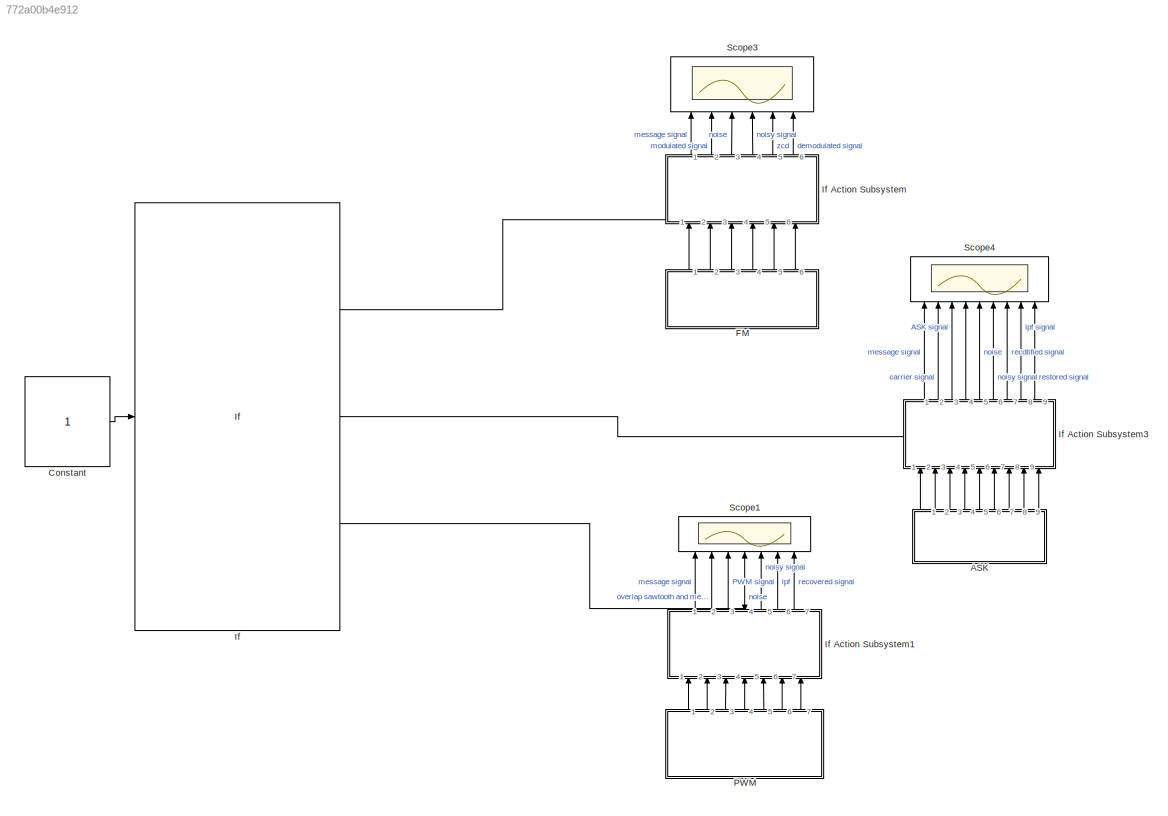
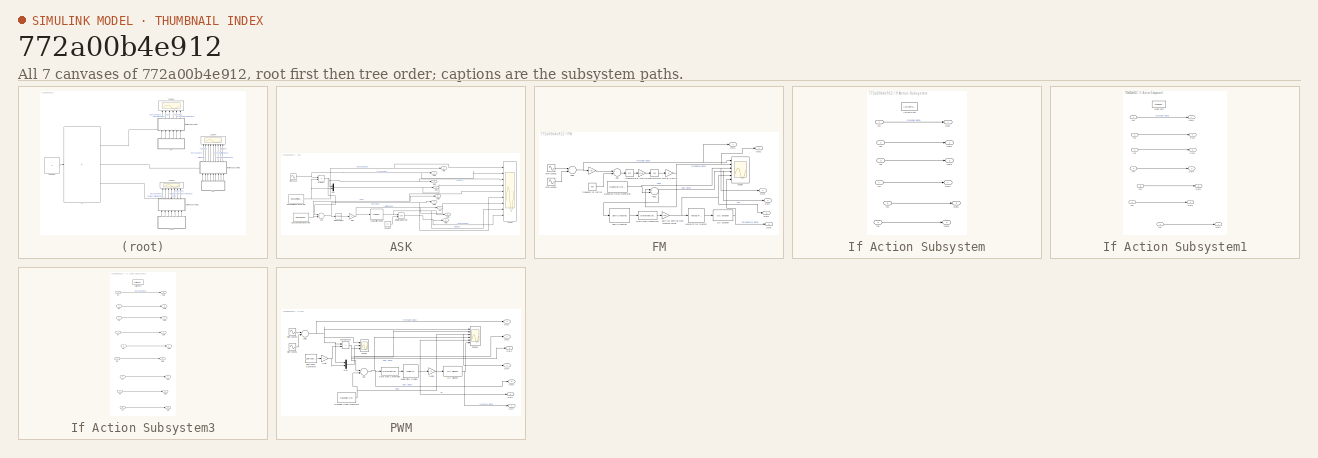
[diagram: thumbnail index - all 7 canvases of the model, root first then tree order]
MODEL slx_772a00b4e912
KIND model
BLOCK [SubSystem] ASK
  Ports = [0, 9]
  RequestExecContextInheritance = off
BLOCK [Sum] ASK/Add
  InputSameDT = off
  OutDataTypeStr = Inherit: Inherit via internal rule
  Ports = [2, 1]
  SampleTime = .0001
  SaturateOnIntegerOverflow = off
BLOCK [Reference] ASK/Analog Filter Design  REF=dsparch4/Analog
Filter Design
  N = 8
  Ports = [1, 1]
  Rp = 2
  Rs = 40
  SourceBlock = dsparch4/Analog\nFilter Design
  SourceType = Analog Filter Design
  Whi = 80
  Wlo = 2*pi*50
  filttype = Lowpass
  method = Butterworth
BLOCK [Constant] ASK/Constant
  SampleTime = 0.0001
  Value = 0.1
BLOCK [Gain] ASK/Gain
  Gain = 2
  OutDataTypeStr = Inherit: Inherit via internal rule
  ParamDataTypeStr = Inherit: Inherit via internal rule
  SampleTime = 0.0001
  SaturateOnIntegerOverflow = off
BLOCK [Reference] ASK/Gaussian Noise Generator  REF=commnoisgen2/Gaussian Noise
Generator
  Ports = [0, 1]
  SourceBlock = commnoisgen2/Gaussian Noise\nGenerator
  SourceType = Gaussian Noise Generator
  Ts = 0.0001
  d = 1e-12
  frameBased = off
  m = 0
  orient = off
  outDataType = double
  s = 41
  sampPerFrame = 1
BLOCK [Math] ASK/Math Function1
  Operator = square
  Ports = [1, 1]
  SampleTime = .0001
BLOCK [Mux] ASK/Mux
  DisplayOption = bar
  Inputs = 2
  Ports = [2, 1]
BLOCK [Outport] ASK/Out1
  IconDisplay = Port number
BLOCK [Outport] ASK/Out2
  IconDisplay = Port number
  Port = 2
BLOCK [Outport] ASK/Out3
  IconDisplay = Port number
  Port = 3
BLOCK [Outport] ASK/Out4
  IconDisplay = Port number
  Port = 4
BLOCK [Outport] ASK/Out5
  IconDisplay = Port number
  Port = 5
BLOCK [Outport] ASK/Out6
  IconDisplay = Port number
  Port = 6
BLOCK [Outport] ASK/Out7
  IconDisplay = Port number
  Port = 7
BLOCK [Outport] ASK/Out8
  IconDisplay = Port number
  Port = 8
BLOCK [Outport] ASK/Out9
  IconDisplay = Port number
  Port = 9
BLOCK [Product] ASK/Product
  InputSameDT = off
  OutDataTypeStr = Inherit: Inherit via internal rule
  Ports = [2, 1]
  RndMeth = Floor
  SampleTime = 0.0001
  SaturateOnIntegerOverflow = off
BLOCK [Reference] ASK/Random Integer Generator  REF=commrandsrc2/Random Integer
Generator
  Ports = [0, 1]
  SourceBlock = commrandsrc2/Random Integer\nGenerator
  SourceType = Random Integer Generator
  Ts = .1
  frameBased = off
  mul = 2
  orient = off
  outDataType = double
  sampPerFrame = 1
  seed = 37
BLOCK [RelationalOperator] ASK/Relational Operator
  InputSameDT = off
  OutDataTypeStr = boolean
  Ports = [2, 1]
  SampleTime = 0.0001
BLOCK [Scope] ASK/Scope
  Floating = off
  LimitDataPoints = off
  NumInputPorts = 9
  Ports = [9]
  SaveName = ScopeData3
  ShowLegends = off
  YMax = 5~5~5~5~5~5~5~5~5
  YMin = -5~-5~-5~-5~-5~-5~-5~-5~-5
BLOCK [Sin] ASK/Sine Wave
  Frequency = 2*pi*50
  Ports = [0, 1]
  SampleTime = 0.0001
BLOCK [Constant] Constant
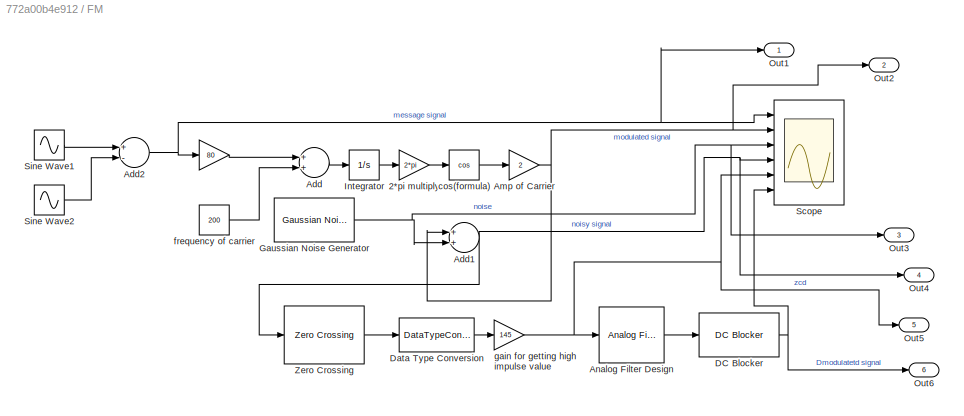
BLOCK [SubSystem] FM
  Ports = [0, 6]
  RequestExecContextInheritance = off
BLOCK [Gain] FM/ 
  Gain = 80
  OutDataTypeStr = Inherit: Inherit via internal rule
  ParamDataTypeStr = Inherit: Inherit via internal rule
  SampleTime = .0001
  SaturateOnIntegerOverflow = off
BLOCK [Gain] FM/2*pi multiply
  Gain = 2*pi
  OutDataTypeStr = Inherit: Inherit via internal rule
  ParamDataTypeStr = Inherit: Inherit via internal rule
  SampleTime = .0001
  SaturateOnIntegerOverflow = off
BLOCK [Sum] FM/Add
  InputSameDT = off
  OutDataTypeStr = Inherit: Inherit via internal rule
  Ports = [2, 1]
  SampleTime = .0001
  SaturateOnIntegerOverflow = off
BLOCK [Sum] FM/Add1
  InputSameDT = off
  OutDataTypeStr = Inherit: Inherit via internal rule
  Ports = [2, 1]
  SampleTime = .0001
  SaturateOnIntegerOverflow = off
BLOCK [Sum] FM/Add2
  InputSameDT = off
  Inputs = +-
  OutDataTypeStr = Inherit: Inherit via internal rule
  Ports = [2, 1]
  SampleTime = .0001
  SaturateOnIntegerOverflow = off
BLOCK [Gain] FM/Amp of Carrier
  Gain = 2
  OutDataTypeStr = Inherit: Inherit via internal rule
  ParamDataTypeStr = Inherit: Inherit via internal rule
  SampleTime = .0001
  SaturateOnIntegerOverflow = off
BLOCK [Reference] FM/Analog Filter Design  REF=dsparch4/Analog
Filter Design
  N = 8
  Ports = [1, 1]
  Rp = 2
  Rs = 40
  SourceBlock = dsparch4/Analog\nFilter Design
  SourceType = Analog Filter Design
  Whi = 80
  Wlo = 2*pi*20
  filttype = Lowpass
  method = Butterworth
BLOCK [Reference] FM/DC Blocker  REF=dspsigops/DC Blocker
  Algorithm = IIR
  Length = 8
  NormalizedBandwidth = 0.001
  Order = 6
  Ports = [1, 1]
  SimulateUsing = Code generation
  SourceBlock = dspsigops/DC Blocker
  SourceType = DCBlocker
BLOCK [DataTypeConversion] FM/Data Type Conversion
  RndMeth = Floor
  SampleTime = .0001
  SaturateOnIntegerOverflow = off
BLOCK [Reference] FM/Gaussian Noise Generator  REF=commnoisgen2/Gaussian Noise
Generator
  Ports = [0, 1]
  SourceBlock = commnoisgen2/Gaussian Noise\nGenerator
  SourceType = Gaussian Noise Generator
  Ts = .0001
  d = 0.000001
  frameBased = off
  m = 0
  orient = off
  outDataType = double
  s = 41
  sampPerFrame = 1
BLOCK [Integrator] FM/Integrator
  Ports = [1, 1]
BLOCK [Outport] FM/Out1
  IconDisplay = Port number
BLOCK [Outport] FM/Out2
  IconDisplay = Port number
  Port = 2
BLOCK [Outport] FM/Out3
  IconDisplay = Port number
  Port = 3
BLOCK [Outport] FM/Out4
  IconDisplay = Port number
  Port = 4
BLOCK [Outport] FM/Out5
  IconDisplay = Port number
  Port = 5
BLOCK [Outport] FM/Out6
  IconDisplay = Port number
  Port = 6
BLOCK [Scope] FM/Scope
  Floating = off
  LimitDataPoints = off
  NumInputPorts = 6
  Ports = [6]
  SaveName = ScopeData5
  ShowLegends = off
  YMax = 5~5~5~5~5~5
  YMin = -5~-5~-5~-5~-5~-5
  ZoomMode = yonly
BLOCK [Sin] FM/Sine Wave1
  Amplitude = 4
  Frequency = 10*pi
  Ports = [0, 1]
  SampleTime = .0001
BLOCK [Sin] FM/Sine Wave2
  Frequency = 40*pi
  Ports = [0, 1]
  SampleTime = .0001
BLOCK [Reference] FM/Zero Crossing  REF=dspsigops/Zero Crossing
  InputProcessing = Columns as channels (frame based)
  Ports = [1, 1]
  SourceBlock = dspsigops/Zero Crossing
  SourceType = Zero Crossing
  UserDataPersistent = on
BLOCK [Trigonometry] FM/cos(formula)
  Operator = cos
  Ports = [1, 1]
  SampleTime = .0001
BLOCK [Constant] FM/frequency of carrier 
  SampleTime = .0001
  Value = 200
BLOCK [Gain] FM/gain for getting high impulse value
  Gain = 145
  OutDataTypeStr = Inherit: Inherit via internal rule
  ParamDataTypeStr = Inherit: Inherit via internal rule
  SampleTime = .0001
  SaturateOnIntegerOverflow = off
BLOCK [If] If
  ElseIfExpressions = u1 == 1
  IfExpression = u1 == 0
  Ports = [1, 3]
BLOCK [SubSystem] If Action Subsystem
  Ports = [6, 6, 0, 0, 0, 0, 0, 1]
  RequestExecContextInheritance = off
  TreatAsAtomicUnit = on
BLOCK [ActionPort] If Action Subsystem/Action Port
  ActionType = then
BLOCK [Inport] If Action Subsystem/In1
  IconDisplay = Port number
BLOCK [Inport] If Action Subsystem/In2
  IconDisplay = Port number
  Port = 2
BLOCK [Inport] If Action Subsystem/In3
  IconDisplay = Port number
  Port = 3
BLOCK [Inport] If Action Subsystem/In4
  IconDisplay = Port number
  Port = 4
BLOCK [Inport] If Action Subsystem/In5
  IconDisplay = Port number
  Port = 5
BLOCK [Inport] If Action Subsystem/In6
  IconDisplay = Port number
  Port = 6
BLOCK [Outport] If Action Subsystem/Out1
  IconDisplay = Port number
BLOCK [Outport] If Action Subsystem/Out2
  IconDisplay = Port number
  Port = 2
BLOCK [Outport] If Action Subsystem/Out3
  IconDisplay = Port number
  Port = 3
BLOCK [Outport] If Action Subsystem/Out4
  IconDisplay = Port number
  Port = 4
BLOCK [Outport] If Action Subsystem/Out5
  IconDisplay = Port number
  Port = 5
BLOCK [Outport] If Action Subsystem/Out6
  IconDisplay = Port number
  Port = 6
BLOCK [SubSystem] If Action Subsystem1
  Ports = [7, 7, 0, 0, 0, 0, 0, 1]
  RequestExecContextInheritance = off
  TreatAsAtomicUnit = on
BLOCK [ActionPort] If Action Subsystem1/Action Port
  ActionType = else
BLOCK [Inport] If Action Subsystem1/In1
  IconDisplay = Port number
BLOCK [Inport] If Action Subsystem1/In2
  IconDisplay = Port number
  Port = 2
BLOCK [Inport] If Action Subsystem1/In3
  IconDisplay = Port number
  Port = 3
BLOCK [Inport] If Action Subsystem1/In4
  IconDisplay = Port number
  Port = 4
BLOCK [Inport] If Action Subsystem1/In5
  IconDisplay = Port number
  Port = 5
BLOCK [Inport] If Action Subsystem1/In6
  IconDisplay = Port number
  Port = 6
BLOCK [Inport] If Action Subsystem1/In7
  IconDisplay = Port number
  Port = 7
BLOCK [Outport] If Action Subsystem1/Out1
  IconDisplay = Port number
BLOCK [Outport] If Action Subsystem1/Out2
  IconDisplay = Port number
  Port = 2
BLOCK [Outport] If Action Subsystem1/Out3
  IconDisplay = Port number
  Port = 3
BLOCK [Outport] If Action Subsystem1/Out4
  IconDisplay = Port number
  Port = 4
BLOCK [Outport] If Action Subsystem1/Out5
  IconDisplay = Port number
  Port = 5
BLOCK [Outport] If Action Subsystem1/Out6
  IconDisplay = Port number
  Port = 6
BLOCK [Outport] If Action Subsystem1/Out7
  IconDisplay = Port number
  Port = 7
BLOCK [SubSystem] If Action Subsystem3
  Ports = [9, 9, 0, 0, 0, 0, 0, 1]
  RequestExecContextInheritance = off
  TreatAsAtomicUnit = on
BLOCK [ActionPort] If Action Subsystem3/Action Port
  ActionType = elseif
BLOCK [Inport] If Action Subsystem3/In1
  IconDisplay = Port number
BLOCK [Inport] If Action Subsystem3/In2
  IconDisplay = Port number
  Port = 2
BLOCK [Inport] If Action Subsystem3/In3
  IconDisplay = Port number
  Port = 3
BLOCK [Inport] If Action Subsystem3/In4
  IconDisplay = Port number
  Port = 4
BLOCK [Inport] If Action Subsystem3/In5
  IconDisplay = Port number
  Port = 5
BLOCK [Inport] If Action Subsystem3/In6
  IconDisplay = Port number
  Port = 6
BLOCK [Inport] If Action Subsystem3/In7
  IconDisplay = Port number
  Port = 7
BLOCK [Inport] If Action Subsystem3/In8
  IconDisplay = Port number
  Port = 8
BLOCK [Inport] If Action Subsystem3/In9
  IconDisplay = Port number
  Port = 9
BLOCK [Outport] If Action Subsystem3/Out1
  IconDisplay = Port number
BLOCK [Outport] If Action Subsystem3/Out2
  IconDisplay = Port number
  Port = 2
BLOCK [Outport] If Action Subsystem3/Out3
  IconDisplay = Port number
  Port = 3
BLOCK [Outport] If Action Subsystem3/Out4
  IconDisplay = Port number
  Port = 4
BLOCK [Outport] If Action Subsystem3/Out5
  IconDisplay = Port number
  Port = 5
BLOCK [Outport] If Action Subsystem3/Out6
  IconDisplay = Port number
  Port = 6
BLOCK [Outport] If Action Subsystem3/Out7
  IconDisplay = Port number
  Port = 7
BLOCK [Outport] If Action Subsystem3/Out8
  IconDisplay = Port number
  Port = 8
BLOCK [Outport] If Action Subsystem3/Out9
  IconDisplay = Port number
  Port = 9
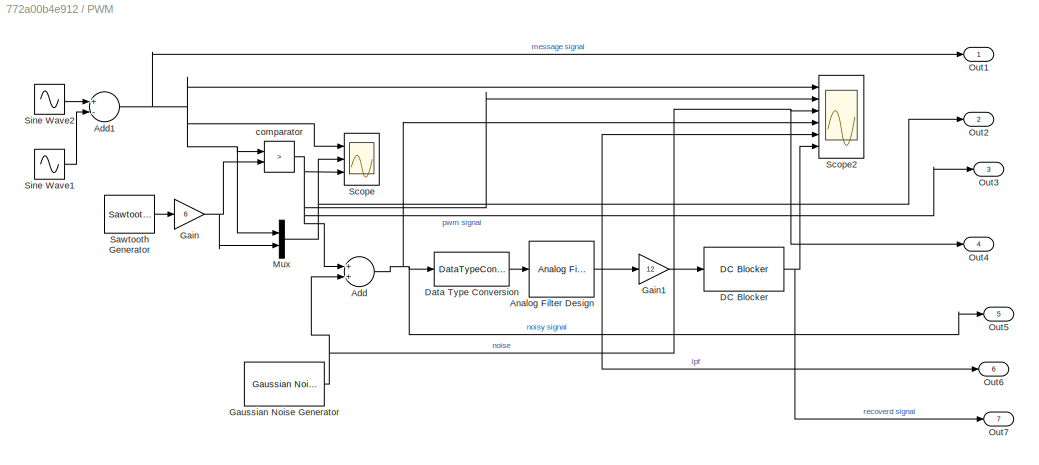
BLOCK [SubSystem] PWM
  Ports = [0, 7]
  RequestExecContextInheritance = off
BLOCK [Sum] PWM/Add
  InputSameDT = off
  OutDataTypeStr = Inherit: Inherit via internal rule
  Ports = [2, 1]
  SampleTime = 0.0001
  SaturateOnIntegerOverflow = off
BLOCK [Sum] PWM/Add1
  InputSameDT = off
  Inputs = +-
  OutDataTypeStr = Inherit: Inherit via internal rule
  Ports = [2, 1]
  SampleTime = 0.0001
  SaturateOnIntegerOverflow = off
BLOCK [Reference] PWM/Analog Filter Design  REF=dsparch4/Analog
Filter Design
  N = 8
  Ports = [1, 1]
  Rp = 2
  Rs = 40
  SourceBlock = dsparch4/Analog\nFilter Design
  SourceType = Analog Filter Design
  Whi = 80
  Wlo = 40*pi
  filttype = Lowpass
  method = Butterworth
BLOCK [Reference] PWM/DC Blocker  REF=dspsigops/DC Blocker
  Algorithm = IIR
  Length = 8
  NormalizedBandwidth = 0.001
  Order = 6
  Ports = [1, 1]
  SimulateUsing = Code generation
  SourceBlock = dspsigops/DC Blocker
  SourceType = DCBlocker
BLOCK [DataTypeConversion] PWM/Data Type Conversion
  RndMeth = Floor
  SampleTime = 0.0001
  SaturateOnIntegerOverflow = off
BLOCK [Gain] PWM/Gain
  Gain = 6
  OutDataTypeStr = Inherit: Inherit via internal rule
  ParamDataTypeStr = Inherit: Inherit via internal rule
  SampleTime = 0.0001
  SaturateOnIntegerOverflow = off
BLOCK [Gain] PWM/Gain1
  Gain = 12
  OutDataTypeStr = Inherit: Inherit via internal rule
  ParamDataTypeStr = Inherit: Inherit via internal rule
  SampleTime = 0.0001
  SaturateOnIntegerOverflow = off
BLOCK [Reference] PWM/Gaussian Noise Generator  REF=commnoisgen2/Gaussian Noise
Generator
  Ports = [0, 1]
  SourceBlock = commnoisgen2/Gaussian Noise\nGenerator
  SourceType = Gaussian Noise Generator
  Ts = 0.0001
  d = 1e-12
  frameBased = off
  m = 0
  orient = off
  outDataType = double
  s = 41
  sampPerFrame = 1
BLOCK [Mux] PWM/Mux
  DisplayOption = bar
  Inputs = 2
  Ports = [2, 1]
BLOCK [Outport] PWM/Out1
  IconDisplay = Port number
BLOCK [Outport] PWM/Out2
  IconDisplay = Port number
  Port = 2
BLOCK [Outport] PWM/Out3
  IconDisplay = Port number
  Port = 3
BLOCK [Outport] PWM/Out4
  IconDisplay = Port number
  Port = 4
BLOCK [Outport] PWM/Out5
  IconDisplay = Port number
  Port = 5
BLOCK [Outport] PWM/Out6
  IconDisplay = Port number
  Port = 6
BLOCK [Outport] PWM/Out7
  IconDisplay = Port number
  Port = 7
BLOCK [Reference] PWM/Sawtooth Generator  REF=powerlib_meascontrol/Pulse & Signal
Generators/Sawtooth
Generator
  Freq = 100
  Phase = 180
  Ports = [0, 1]
  SourceBlock = powerlib_meascontrol/Pulse & Signal\nGenerators/Sawtooth\nGenerator
  SourceType = Sawtooth Generator
  Ts = 0
BLOCK [Scope] PWM/Scope
  Floating = off
  LimitDataPoints = off
  NumInputPorts = 3
  Ports = [3]
  SaveName = ScopeData4
  ShowLegends = off
  YMax = 5~5~5
  YMin = -5~-5~-5
  ZoomMode = xonly
BLOCK [Scope] PWM/Scope2
  Floating = off
  LimitDataPoints = off
  NumInputPorts = 6
  Ports = [6]
  SaveName = ScopeData2
  ShowLegends = off
  YMax = 5~5~5~5~5~5
  YMin = -5~-5~-5~-5~-5~-5
BLOCK [Sin] PWM/Sine Wave1
  Amplitude = 4
  Frequency = 10*pi
  Ports = [0, 1]
  SampleTime = 0.0001
BLOCK [Sin] PWM/Sine Wave2
  Frequency = 40*pi
  Ports = [0, 1]
  SampleTime = 0.0001
BLOCK [RelationalOperator] PWM/comparator 
  InputSameDT = off
  Operator = >
  OutDataTypeStr = boolean
  Ports = [2, 1]
  SampleTime = 0.0001
BLOCK [Scope] Scope1
  Floating = off
  LimitDataPoints = off
  NumInputPorts = 7
  Ports = [7]
  SaveName = ScopeData1
  ShowLegends = off
  YMax = 5~5~5~5~5~5~5
  YMin = -5~-5~-5~-5~-5~-5~-5
  ZoomMode = yonly
BLOCK [Scope] Scope3
  Floating = off
  LimitDataPoints = off
  NumInputPorts = 6
  Ports = [6]
  ShowLegends = off
  YMax = 5~5~5~5~5~5
  YMin = -5~-5~-5~-5~-5~-5
  ZoomMode = yonly
BLOCK [Scope] Scope4
  Floating = off
  LimitDataPoints = off
  NumInputPorts = 9
  Ports = [9]
  SaveName = ScopeData6
  ShowLegends = off
  YMax = 5~5~5~5~5~5~5~5~5
  YMin = -5~-5~-5~-5~-5~-5~-5~-5~-5
  ZoomMode = yonly
NET ASK/Add:1 -> ASK/Math Function1:1, ASK/Out6:1, ASK/Scope:6
NET ASK/Analog Filter Design:1 -> ASK/Out8:1, ASK/Relational Operator:1, ASK/Scope:8
LINE ASK/Constant:1 -> ASK/Relational Operator:2
NET ASK/Gain:1 -> ASK/Analog Filter Design:1, ASK/Out7:1, ASK/Scope:7
NET ASK/Gaussian Noise Generator:1 -> ASK/Add:2, ASK/Out5:1, ASK/Scope:5
LINE ASK/Math Function1:1 -> ASK/Gain:1
NET ASK/Mux:1 -> ASK/Out4:1, ASK/Scope:4
NET ASK/Product:1 -> ASK/Add:1, ASK/Mux:1, ASK/Out3:1, ASK/Scope:3
NET ASK/Random Integer Generator:1 -> ASK/Mux:2, ASK/Out1:1, ASK/Product:2, ASK/Scope:1
NET ASK/Relational Operator:1 -> ASK/Out9:1, ASK/Scope:9
NET ASK/Sine Wave:1 -> ASK/Out2:1, ASK/Product:1, ASK/Scope:2
LINE ASK:1 -> If Action Subsystem3:1
LINE ASK:2 -> If Action Subsystem3:2
LINE ASK:3 -> If Action Subsystem3:3
LINE ASK:4 -> If Action Subsystem3:4
LINE ASK:5 -> If Action Subsystem3:5
LINE ASK:6 -> If Action Subsystem3:6
LINE ASK:7 -> If Action Subsystem3:7
LINE ASK:8 -> If Action Subsystem3:8
LINE ASK:9 -> If Action Subsystem3:9
LINE Constant:1 -> If:1
LINE FM/ :1 -> FM/Add:1
LINE FM/2*pi multiply:1 -> FM/cos(formula):1
NET FM/Add1:1 -> FM/Out4:1, FM/Scope:4, FM/Zero Crossing:1
NET FM/Add2:1 -> FM/ :1, FM/Out1:1, FM/Scope:1
LINE FM/Add:1 -> FM/Integrator:1
NET FM/Amp of Carrier:1 -> FM/Add1:1, FM/Out2:1, FM/Scope:2
LINE FM/Analog Filter Design:1 -> FM/DC Blocker:1
NET FM/DC Blocker:1 -> FM/Out6:1, FM/Scope:6
LINE FM/Data Type Conversion:1 -> FM/gain for getting high impulse value:1
NET FM/Gaussian Noise Generator:1 -> FM/Add1:2, FM/Out3:1, FM/Scope:3
LINE FM/Integrator:1 -> FM/2*pi multiply:1
LINE FM/Sine Wave1:1 -> FM/Add2:1
LINE FM/Sine Wave2:1 -> FM/Add2:2
LINE FM/Zero Crossing:1 -> FM/Data Type Conversion:1
LINE FM/cos(formula):1 -> FM/Amp of Carrier:1
LINE FM/frequency of carrier :1 -> FM/Add:2
NET FM/gain for getting high impulse value:1 -> FM/Analog Filter Design:1, FM/Out5:1, FM/Scope:5
LINE FM:1 -> If Action Subsystem:1
LINE FM:2 -> If Action Subsystem:2
LINE FM:3 -> If Action Subsystem:3
LINE FM:4 -> If Action Subsystem:4
LINE FM:5 -> If Action Subsystem:5
LINE FM:6 -> If Action Subsystem:6
LINE If Action Subsystem/In1:1 -> If Action Subsystem/Out1:1
LINE If Action Subsystem/In2:1 -> If Action Subsystem/Out2:1
LINE If Action Subsystem/In3:1 -> If Action Subsystem/Out3:1
LINE If Action Subsystem/In4:1 -> If Action Subsystem/Out4:1
LINE If Action Subsystem/In5:1 -> If Action Subsystem/Out5:1
LINE If Action Subsystem/In6:1 -> If Action Subsystem/Out6:1
LINE If Action Subsystem1/In1:1 -> If Action Subsystem1/Out1:1
LINE If Action Subsystem1/In2:1 -> If Action Subsystem1/Out2:1
LINE If Action Subsystem1/In3:1 -> If Action Subsystem1/Out3:1
LINE If Action Subsystem1/In4:1 -> If Action Subsystem1/Out4:1
LINE If Action Subsystem1/In5:1 -> If Action Subsystem1/Out5:1
LINE If Action Subsystem1/In6:1 -> If Action Subsystem1/Out6:1
LINE If Action Subsystem1/In7:1 -> If Action Subsystem1/Out7:1
LINE If Action Subsystem1:1 -> Scope1:1
LINE If Action Subsystem1:2 -> Scope1:2
LINE If Action Subsystem1:3 -> Scope1:3
LINE If Action Subsystem1:4 -> Scope1:4
LINE If Action Subsystem1:5 -> Scope1:5
LINE If Action Subsystem1:6 -> Scope1:6
LINE If Action Subsystem1:7 -> Scope1:7
LINE If Action Subsystem3/In1:1 -> If Action Subsystem3/Out1:1
LINE If Action Subsystem3/In2:1 -> If Action Subsystem3/Out2:1
LINE If Action Subsystem3/In3:1 -> If Action Subsystem3/Out3:1
LINE If Action Subsystem3/In4:1 -> If Action Subsystem3/Out4:1
LINE If Action Subsystem3/In5:1 -> If Action Subsystem3/Out5:1
LINE If Action Subsystem3/In6:1 -> If Action Subsystem3/Out6:1
LINE If Action Subsystem3/In7:1 -> If Action Subsystem3/Out7:1
LINE If Action Subsystem3/In8:1 -> If Action Subsystem3/Out8:1
LINE If Action Subsystem3/In9:1 -> If Action Subsystem3/Out9:1
LINE If Action Subsystem3:1 -> Scope4:1
LINE If Action Subsystem3:2 -> Scope4:2
LINE If Action Subsystem3:3 -> Scope4:3
LINE If Action Subsystem3:4 -> Scope4:4
LINE If Action Subsystem3:5 -> Scope4:5
LINE If Action Subsystem3:6 -> Scope4:6
LINE If Action Subsystem3:7 -> Scope4:7
LINE If Action Subsystem3:8 -> Scope4:8
LINE If Action Subsystem3:9 -> Scope4:9
LINE If Action Subsystem:1 -> Scope3:1
LINE If Action Subsystem:2 -> Scope3:2
LINE If Action Subsystem:3 -> Scope3:3
LINE If Action Subsystem:4 -> Scope3:4
LINE If Action Subsystem:5 -> Scope3:5
LINE If Action Subsystem:6 -> Scope3:6
LINE If:1 -> If Action Subsystem:ifaction
LINE If:2 -> If Action Subsystem3:ifaction
LINE If:3 -> If Action Subsystem1:ifaction
NET PWM/Add1:1 -> PWM/Mux:1, PWM/Out1:1, PWM/Scope2:1, PWM/Scope:1, PWM/comparator :1
NET PWM/Add:1 -> PWM/Data Type Conversion:1, PWM/Out5:1, PWM/Scope2:4
NET PWM/Analog Filter Design:1 -> PWM/Gain1:1, PWM/Out6:1, PWM/Scope2:5
NET PWM/DC Blocker:1 -> PWM/Out7:1, PWM/Scope2:6
LINE PWM/Data Type Conversion:1 -> PWM/Analog Filter Design:1
LINE PWM/Gain1:1 -> PWM/DC Blocker:1
NET PWM/Gain:1 -> PWM/Mux:2, PWM/comparator :2
NET PWM/Gaussian Noise Generator:1 -> PWM/Add:2, PWM/Out4:1, PWM/Scope2:3
NET PWM/Mux:1 -> PWM/Out2:1, PWM/Scope:2
LINE PWM/Sawtooth Generator:1 -> PWM/Gain:1
LINE PWM/Sine Wave1:1 -> PWM/Add1:2
LINE PWM/Sine Wave2:1 -> PWM/Add1:1
NET PWM/comparator :1 -> PWM/Add:1, PWM/Out3:1, PWM/Scope2:2, PWM/Scope:3
LINE PWM:1 -> If Action Subsystem1:1
LINE PWM:2 -> If Action Subsystem1:2
LINE PWM:3 -> If Action Subsystem1:3
LINE PWM:4 -> If Action Subsystem1:4
LINE PWM:5 -> If Action Subsystem1:5
LINE PWM:6 -> If Action Subsystem1:6
LINE PWM:7 -> If Action Subsystem1:7
note: NET lines group one-source signal fan-out (src -> all destinations, sorted); 1:1 wires keep LINE
